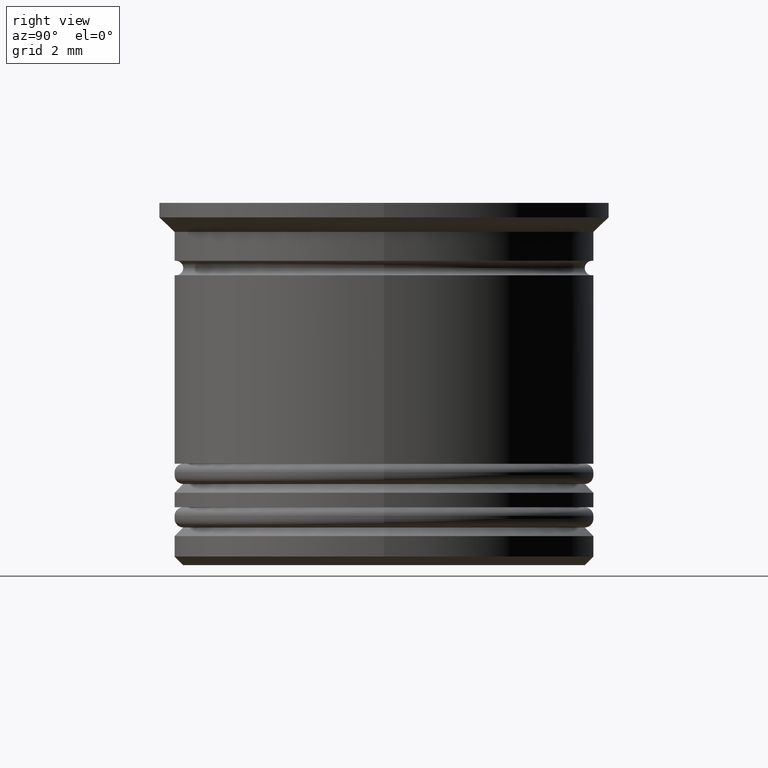
[diagram: clean part render]
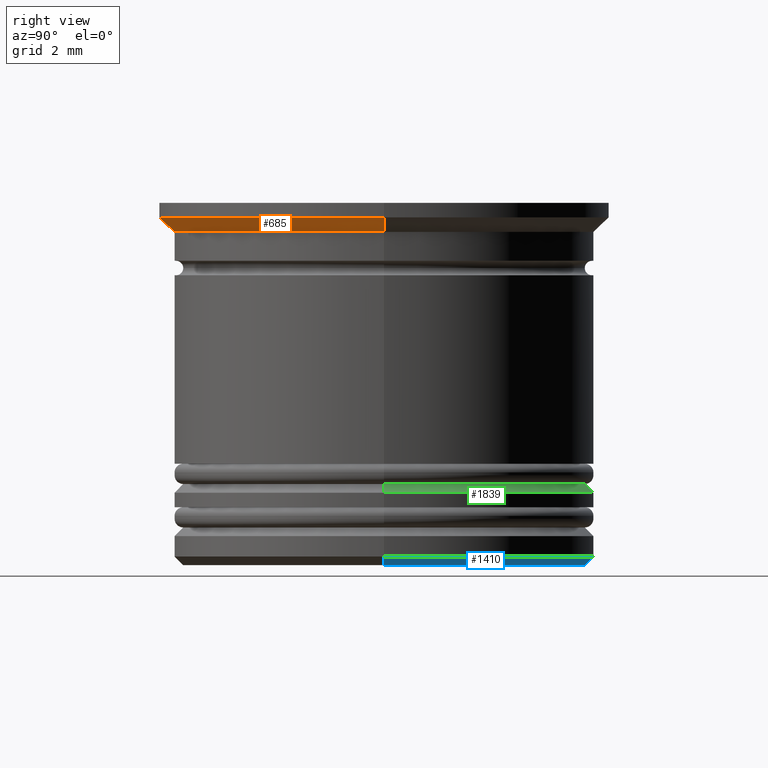
[diagram: same view with three faces highlighted in distinct colors, each labeled with its STEP entity id]
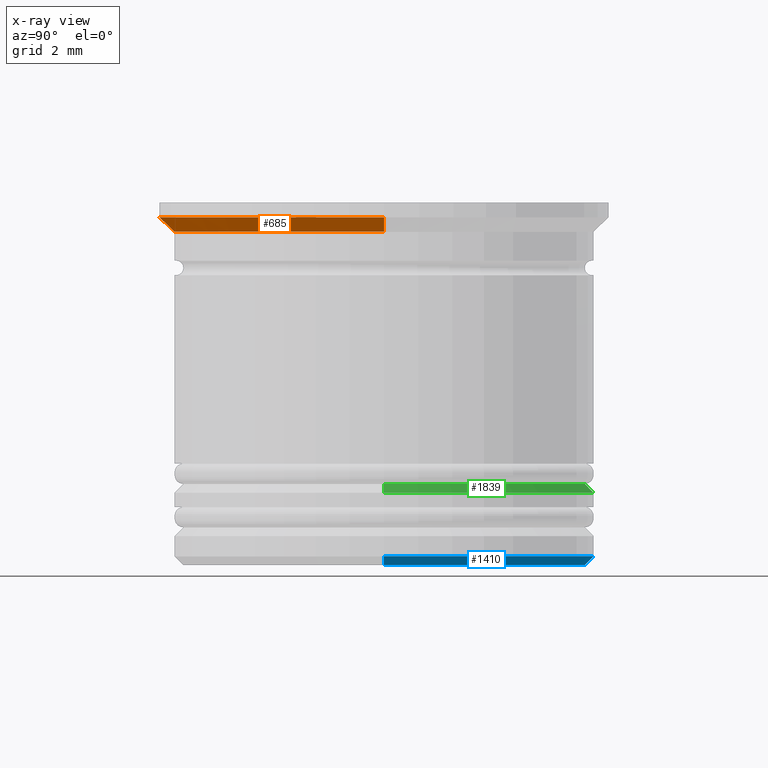
[diagram: x-ray of the same camera — body ghosted, the three highlighted faces saturated]
A machine part, right view with three faces highlighted in distinct colors.
The next image is the same camera in x-ray (body ghosted, the three faces saturated) — at least one of them is partly hidden behind the body in this view.
Their STEP definitions:

[orange] entity #685 — the highlighted conical surface has half-angle 45 deg.
#6 = DIRECTION ( 'NONE',  ( 1.000000000000000000, 0.000000000000000000, 0.000000000000000000 ) ) ;
#76 = AXIS2_PLACEMENT_3D ( 'NONE', #793, #320, #447 ) ;
#135 = VERTEX_POINT ( 'NONE', #834 ) ;
#161 = DIRECTION ( 'NONE',  ( 0.7071067811865482389, 0.000000000000000000, 0.7071067811865469066 ) ) ;
#180 = CARTESIAN_POINT ( 'NONE',  ( -7.750000000000000000, 9.491012693391987787E-16, -0.5000000000000000000 ) ) ;
#268 = ORIENTED_EDGE ( 'NONE', *, *, #1251, .F. ) ;
#320 = DIRECTION ( 'NONE',  ( -0.000000000000000000, -0.000000000000000000, 1.000000000000000000 ) ) ;
#356 = CARTESIAN_POINT ( 'NONE',  ( -7.750000000000000000, 9.491012693391987787E-16, -0.5000000000000000000 ) ) ;
#416 = FACE_OUTER_BOUND ( 'NONE', #696, .T. ) ;
#447 = DIRECTION ( 'NONE',  ( -1.000000000000000000, 0.000000000000000000, 0.000000000000000000 ) ) ;
#617 = VERTEX_POINT ( 'NONE', #1861 ) ;
#634 = VECTOR ( 'NONE', #161, 999.9999999999998863 ) ;
#685 = ADVANCED_FACE ( 'NONE', ( #416 ), #762, .T. ) ;
#696 = EDGE_LOOP ( 'NONE', ( #1258, #1801, #1917, #268 ) ) ;
#762 = CONICAL_SURFACE ( 'NONE', #849, 7.750000000000000000, 0.7853981633974491672 ) ;
#793 = CARTESIAN_POINT ( 'NONE',  ( 0.000000000000000000, 0.000000000000000000, -0.5000000000000000000 ) ) ;
#814 = CARTESIAN_POINT ( 'NONE',  ( 0.000000000000000000, 0.000000000000000000, -0.9999999999999995559 ) ) ;
#834 = CARTESIAN_POINT ( 'NONE',  ( 7.750000000000000000, 0.000000000000000000, -0.5000000000000000000 ) ) ;
#849 = AXIS2_PLACEMENT_3D ( 'NONE', #1898, #1929, #1304 ) ;
#899 = CARTESIAN_POINT ( 'NONE',  ( 7.750000000000000000, 0.000000000000000000, -0.5000000000000000000 ) ) ;
#978 = EDGE_CURVE ( 'NONE', #1769, #617, #1555, .T. ) ;
#1113 = VECTOR ( 'NONE', #1725, 999.9999999999998863 ) ;
#1142 = AXIS2_PLACEMENT_3D ( 'NONE', #814, #1259, #6 ) ;
#1251 = EDGE_CURVE ( 'NONE', #1890, #135, #1558, .T. ) ;
#1255 = CARTESIAN_POINT ( 'NONE',  ( -7.249999999999997335, 8.878689293818308102E-16, -0.9999999999999995559 ) ) ;
#1258 = ORIENTED_EDGE ( 'NONE', *, *, #1774, .F. ) ;
#1259 = DIRECTION ( 'NONE',  ( -0.000000000000000000, -0.000000000000000000, 1.000000000000000000 ) ) ;
#1304 = DIRECTION ( 'NONE',  ( 1.000000000000000000, 0.000000000000000000, 0.000000000000000000 ) ) ;
#1555 = CIRCLE ( 'NONE', #1142, 7.249999999999997335 ) ;
#1558 = CIRCLE ( 'NONE', #76, 7.750000000000000000 ) ;
#1725 = DIRECTION ( 'NONE',  ( -0.7071067811865482389, 8.659560562354942719E-17, 0.7071067811865469066 ) ) ;
#1735 = LINE ( 'NONE', #356, #1113 ) ;
#1769 = VERTEX_POINT ( 'NONE', #1255 ) ;
#1774 = EDGE_CURVE ( 'NONE', #1769, #1890, #1735, .T. ) ;
#1801 = ORIENTED_EDGE ( 'NONE', *, *, #978, .T. ) ;
#1831 = LINE ( 'NONE', #899, #634 ) ;
#1835 = EDGE_CURVE ( 'NONE', #617, #135, #1831, .T. ) ;
#1861 = CARTESIAN_POINT ( 'NONE',  ( 7.249999999999997335, 0.000000000000000000, -0.9999999999999995559 ) ) ;
#1890 = VERTEX_POINT ( 'NONE', #180 ) ;
#1898 = CARTESIAN_POINT ( 'NONE',  ( 0.000000000000000000, 0.000000000000000000, -0.5000000000000000000 ) ) ;
#1917 = ORIENTED_EDGE ( 'NONE', *, *, #1835, .T. ) ;
#1929 = DIRECTION ( 'NONE',  ( -0.000000000000000000, -0.000000000000000000, 1.000000000000000000 ) ) ;

[blue] entity #1410 — the highlighted conical surface has half-angle 45 deg.
#23 = DIRECTION ( 'NONE',  ( -0.000000000000000000, -0.000000000000000000, 1.000000000000000000 ) ) ;
#43 = VECTOR ( 'NONE', #905, 1000.000000000000114 ) ;
#74 = ORIENTED_EDGE ( 'NONE', *, *, #836, .F. ) ;
#308 = CARTESIAN_POINT ( 'NONE',  ( 0.000000000000000000, 0.000000000000000000, -12.20000000000000639 ) ) ;
#357 = CARTESIAN_POINT ( 'NONE',  ( 0.000000000000000000, 0.000000000000000000, -12.50000000000000000 ) ) ;
#436 = CARTESIAN_POINT ( 'NONE',  ( 7.250000000000000888, 0.000000000000000000, -12.20000000000000639 ) ) ;
#454 = VERTEX_POINT ( 'NONE', #1395 ) ;
#482 = ORIENTED_EDGE ( 'NONE', *, *, #1421, .F. ) ;
#493 = EDGE_CURVE ( 'NONE', #1246, #454, #772, .T. ) ;
#519 = VERTEX_POINT ( 'NONE', #640 ) ;
#558 = ORIENTED_EDGE ( 'NONE', *, *, #1567, .F. ) ;
#592 = CARTESIAN_POINT ( 'NONE',  ( -7.250000000000000888, 8.878689293818312046E-16, -12.20000000000000639 ) ) ;
#622 = CARTESIAN_POINT ( 'NONE',  ( -6.950000000000003730, 8.694992273946211691E-16, -12.50000000000000000 ) ) ;
#640 = CARTESIAN_POINT ( 'NONE',  ( 7.250000000000000888, 0.000000000000000000, -12.20000000000000639 ) ) ;
#643 = DIRECTION ( 'NONE',  ( 1.000000000000000000, 0.000000000000000000, 0.000000000000000000 ) ) ;
#772 = LINE ( 'NONE', #592, #1647 ) ;
#836 = EDGE_CURVE ( 'NONE', #1666, #519, #885, .T. ) ;
#839 = FACE_OUTER_BOUND ( 'NONE', #842, .T. ) ;
#842 = EDGE_LOOP ( 'NONE', ( #482, #1294, #558, #74 ) ) ;
#884 = CIRCLE ( 'NONE', #1944, 7.250000000000000888 ) ;
#885 = LINE ( 'NONE', #436, #43 ) ;
#905 = DIRECTION ( 'NONE',  ( 0.7071067811865506814, 0.000000000000000000, 0.7071067811865443531 ) ) ;
#936 = CARTESIAN_POINT ( 'NONE',  ( 6.950000000000003730, 0.000000000000000000, -12.50000000000000000 ) ) ;
#1201 = DIRECTION ( 'NONE',  ( -0.7071067811865506814, 8.659560562354969836E-17, 0.7071067811865443531 ) ) ;
#1240 = AXIS2_PLACEMENT_3D ( 'NONE', #357, #1887, #1870 ) ;
#1246 = VERTEX_POINT ( 'NONE', #622 ) ;
#1276 = CIRCLE ( 'NONE', #1240, 6.950000000000003730 ) ;
#1290 = CARTESIAN_POINT ( 'NONE',  ( 0.000000000000000000, 0.000000000000000000, -12.20000000000000639 ) ) ;
#1294 = ORIENTED_EDGE ( 'NONE', *, *, #493, .T. ) ;
#1368 = DIRECTION ( 'NONE',  ( -1.000000000000000000, 0.000000000000000000, 0.000000000000000000 ) ) ;
#1395 = CARTESIAN_POINT ( 'NONE',  ( -7.250000000000000888, 8.878689293818312046E-16, -12.20000000000000639 ) ) ;
#1410 = ADVANCED_FACE ( 'NONE', ( #839 ), #1466, .T. ) ;
#1421 = EDGE_CURVE ( 'NONE', #1246, #1666, #1276, .T. ) ;
#1466 = CONICAL_SURFACE ( 'NONE', #1910, 7.250000000000000888, 0.7853981633974528309 ) ;
#1533 = DIRECTION ( 'NONE',  ( -0.000000000000000000, -0.000000000000000000, 1.000000000000000000 ) ) ;
#1567 = EDGE_CURVE ( 'NONE', #519, #454, #884, .T. ) ;
#1647 = VECTOR ( 'NONE', #1201, 1000.000000000000114 ) ;
#1666 = VERTEX_POINT ( 'NONE', #936 ) ;
#1870 = DIRECTION ( 'NONE',  ( -1.000000000000000000, 0.000000000000000000, 0.000000000000000000 ) ) ;
#1887 = DIRECTION ( 'NONE',  ( 0.000000000000000000, 0.000000000000000000, -1.000000000000000000 ) ) ;
#1910 = AXIS2_PLACEMENT_3D ( 'NONE', #1290, #23, #643 ) ;
#1944 = AXIS2_PLACEMENT_3D ( 'NONE', #308, #1533, #1368 ) ;

[green] entity #1839 — the highlighted conical surface has half-angle 45 deg.
#26 = EDGE_CURVE ( 'NONE', #1794, #1721, #1813, .T. ) ;
#89 = EDGE_CURVE ( 'NONE', #418, #344, #260, .T. ) ;
#243 = AXIS2_PLACEMENT_3D ( 'NONE', #619, #426, #1953 ) ;
#260 = LINE ( 'NONE', #1492, #658 ) ;
#280 = EDGE_CURVE ( 'NONE', #418, #1794, #1497, .T. ) ;
#344 = VERTEX_POINT ( 'NONE', #1320 ) ;
#359 = DIRECTION ( 'NONE',  ( 0.7071067811865512365, 8.659560562354978464E-17, -0.7071067811865439090 ) ) ;
#418 = VERTEX_POINT ( 'NONE', #1987 ) ;
#426 = DIRECTION ( 'NONE',  ( 0.000000000000000000, 0.000000000000000000, -1.000000000000000000 ) ) ;
#451 = CARTESIAN_POINT ( 'NONE',  ( -6.749999999999990230, 0.000000000000000000, -9.500000000000000000 ) ) ;
#488 = DIRECTION ( 'NONE',  ( 1.000000000000000000, 0.000000000000000000, 0.000000000000000000 ) ) ;
#545 = EDGE_CURVE ( 'NONE', #1721, #344, #1817, .T. ) ;
#611 = FACE_OUTER_BOUND ( 'NONE', #745, .T. ) ;
#619 = CARTESIAN_POINT ( 'NONE',  ( 0.000000000000000000, 0.000000000000000000, -9.500000000000000000 ) ) ;
#658 = VECTOR ( 'NONE', #359, 1000.000000000000000 ) ;
#671 = ORIENTED_EDGE ( 'NONE', *, *, #280, .F. ) ;
#745 = EDGE_LOOP ( 'NONE', ( #671, #1112, #1011, #1378 ) ) ;
#979 = CARTESIAN_POINT ( 'NONE',  ( 0.000000000000000000, 0.000000000000000000, -10.00000000000000355 ) ) ;
#993 = DIRECTION ( 'NONE',  ( -0.000000000000000000, -0.000000000000000000, 1.000000000000000000 ) ) ;
#1004 = VECTOR ( 'NONE', #1520, 1000.000000000000000 ) ;
#1011 = ORIENTED_EDGE ( 'NONE', *, *, #545, .F. ) ;
#1048 = AXIS2_PLACEMENT_3D ( 'NONE', #979, #1288, #488 ) ;
#1112 = ORIENTED_EDGE ( 'NONE', *, *, #89, .T. ) ;
#1173 = DIRECTION ( 'NONE',  ( -1.000000000000000000, 0.000000000000000000, 0.000000000000000000 ) ) ;
#1288 = DIRECTION ( 'NONE',  ( 0.000000000000000000, 0.000000000000000000, -1.000000000000000000 ) ) ;
#1320 = CARTESIAN_POINT ( 'NONE',  ( 7.249999999999999112, 0.000000000000000000, -10.00000000000000355 ) ) ;
#1329 = CARTESIAN_POINT ( 'NONE',  ( 0.000000000000000000, 0.000000000000000000, -9.700000000000006395 ) ) ;
#1369 = AXIS2_PLACEMENT_3D ( 'NONE', #1329, #993, #1173 ) ;
#1378 = ORIENTED_EDGE ( 'NONE', *, *, #26, .F. ) ;
#1492 = CARTESIAN_POINT ( 'NONE',  ( 6.749999999999990230, 8.266365894244622500E-16, -9.500000000000000000 ) ) ;
#1497 = CIRCLE ( 'NONE', #1369, 6.950000000000000178 ) ;
#1520 = DIRECTION ( 'NONE',  ( -0.7071067811865512365, 0.000000000000000000, -0.7071067811865439090 ) ) ;
#1641 = CARTESIAN_POINT ( 'NONE',  ( -7.249999999999999112, 8.878689293818310074E-16, -10.00000000000000355 ) ) ;
#1721 = VERTEX_POINT ( 'NONE', #1641 ) ;
#1794 = VERTEX_POINT ( 'NONE', #1840 ) ;
#1813 = LINE ( 'NONE', #451, #1004 ) ;
#1817 = CIRCLE ( 'NONE', #1048, 7.249999999999999112 ) ;
#1839 = ADVANCED_FACE ( 'NONE', ( #611 ), #1857, .T. ) ;
#1840 = CARTESIAN_POINT ( 'NONE',  ( -6.950000000000000178, 8.511295254074105418E-16, -9.700000000000006395 ) ) ;
#1857 = CONICAL_SURFACE ( 'NONE', #243, 6.749999999999990230, 0.7853981633974533860 ) ;
#1953 = DIRECTION ( 'NONE',  ( -1.000000000000000000, 0.000000000000000000, 0.000000000000000000 ) ) ;
#1987 = CARTESIAN_POINT ( 'NONE',  ( 6.950000000000000178, 0.000000000000000000, -9.700000000000006395 ) ) ;